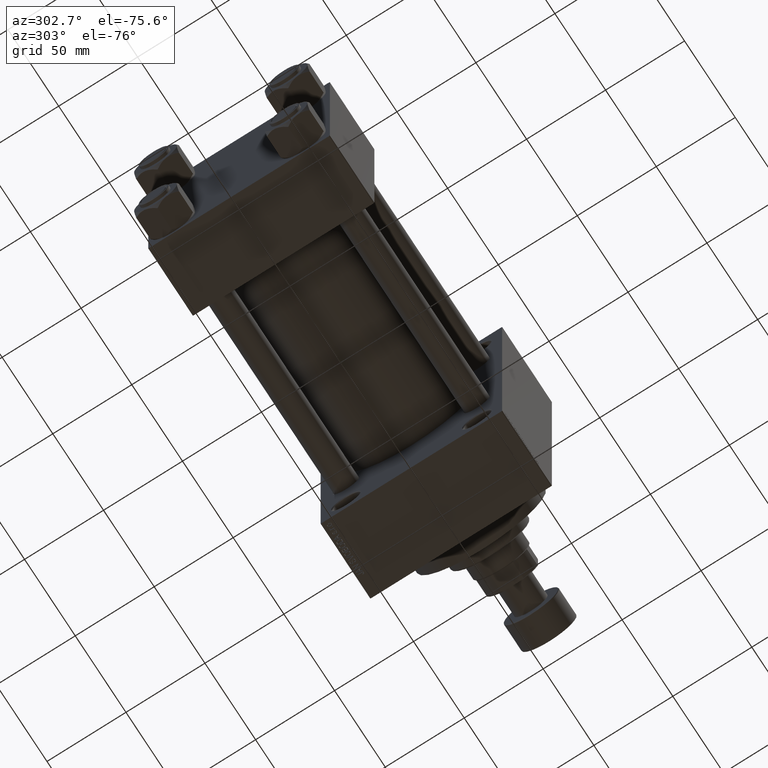
[diagram: clean part render]
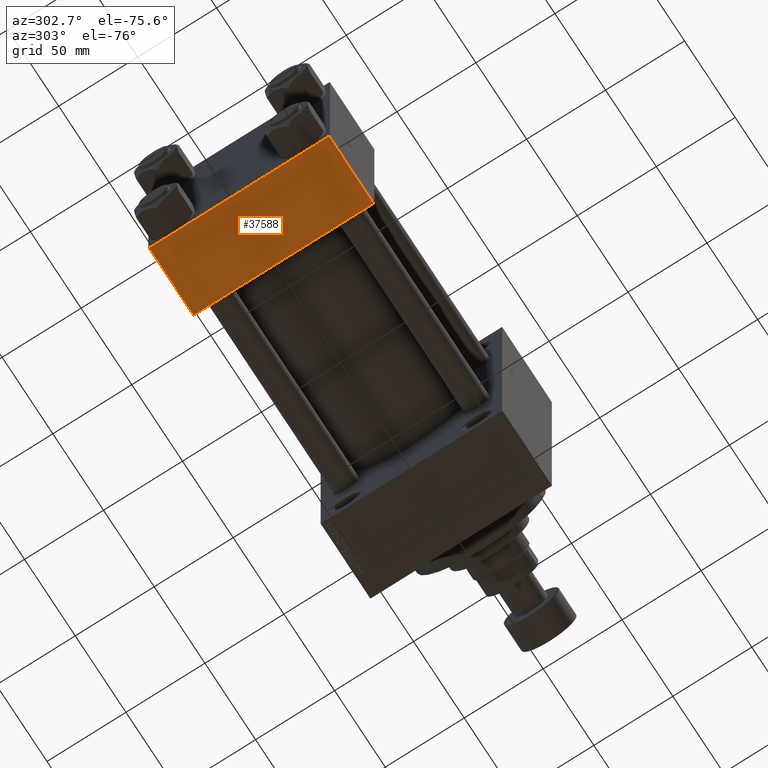
[diagram: same view with one face highlighted and labeled with its STEP entity id]
A machine part, auxiliary view. The second image highlights one B-rep face of the part: STEP entity #37588.
In plain terms, the highlighted planar face has unit normal (0, 0, -1).
Its self-contained STEP definition (entity closure, byte-faithful):
#731 = EDGE_CURVE ( 'NONE', #22801, #36166, #7634, .T. ) ;
#1337 = LINE ( 'NONE', #19595, #47863 ) ;
#3140 = DIRECTION ( 'NONE',  ( 0.000000000000000000, 1.206764157201257291E-16, -1.000000000000000000 ) ) ;
#7634 = LINE ( 'NONE', #33418, #30770 ) ;
#8518 = DIRECTION ( 'NONE',  ( 0.000000000000000000, -1.000000000000000000, -1.206764157201257291E-16 ) ) ;
#8713 = EDGE_CURVE ( 'NONE', #26845, #29045, #20082, .T. ) ;
#8973 = CARTESIAN_POINT ( 'NONE',  ( 44.00000000000000000, 57.50000000000000000, -57.49999999999999289 ) ) ;
#10705 = CARTESIAN_POINT ( 'NONE',  ( 44.00000000000000000, -57.00000000000001421, -57.50000000000000711 ) ) ;
#10837 = ORIENTED_EDGE ( 'NONE', *, *, #22471, .F. ) ;
#11907 = EDGE_LOOP ( 'NONE', ( #10837, #43403, #36131, #14765 ) ) ;
#14484 = CARTESIAN_POINT ( 'NONE',  ( 0.000000000000000000, -57.00000000000001421, -57.50000000000000711 ) ) ;
#14571 = CARTESIAN_POINT ( 'NONE',  ( 44.00000000000000000, 57.50000000000000000, -57.49999999999999289 ) ) ;
#14765 = ORIENTED_EDGE ( 'NONE', *, *, #8713, .T. ) ;
#17978 = FACE_OUTER_BOUND ( 'NONE', #11907, .T. ) ;
#19421 = CARTESIAN_POINT ( 'NONE',  ( 44.00000000000000000, 57.00000000000002842, -57.49999999999999289 ) ) ;
#19595 = CARTESIAN_POINT ( 'NONE',  ( 0.000000000000000000, 57.50000000000000000, -57.49999999999999289 ) ) ;
#20082 = LINE ( 'NONE', #34680, #38360 ) ;
#20909 = DIRECTION ( 'NONE',  ( 0.000000000000000000, 1.000000000000000000, 1.206764157201257291E-16 ) ) ;
#22390 = VECTOR ( 'NONE', #8518, 1000.000000000000000 ) ;
#22471 = EDGE_CURVE ( 'NONE', #22801, #29045, #1337, .T. ) ;
#22480 = DIRECTION ( 'NONE',  ( 1.000000000000000000, 0.000000000000000000, 0.000000000000000000 ) ) ;
#22801 = VERTEX_POINT ( 'NONE', #42088 ) ;
#23012 = DIRECTION ( 'NONE',  ( 0.000000000000000000, -1.000000000000000000, -1.206764157201257291E-16 ) ) ;
#26845 = VERTEX_POINT ( 'NONE', #10705 ) ;
#29045 = VERTEX_POINT ( 'NONE', #14484 ) ;
#30571 = DIRECTION ( 'NONE',  ( -1.000000000000000000, 0.000000000000000000, 0.000000000000000000 ) ) ;
#30770 = VECTOR ( 'NONE', #22480, 1000.000000000000000 ) ;
#31749 = EDGE_CURVE ( 'NONE', #36166, #26845, #41361, .T. ) ;
#33283 = AXIS2_PLACEMENT_3D ( 'NONE', #14571, #3140, #20909 ) ;
#33418 = CARTESIAN_POINT ( 'NONE',  ( 44.00000000000000000, 57.00000000000002842, -57.49999999999999289 ) ) ;
#34680 = CARTESIAN_POINT ( 'NONE',  ( 0.000000000000000000, -57.00000000000001421, -57.50000000000000711 ) ) ;
#35744 = PLANE ( 'NONE',  #33283 ) ;
#36131 = ORIENTED_EDGE ( 'NONE', *, *, #31749, .T. ) ;
#36166 = VERTEX_POINT ( 'NONE', #19421 ) ;
#37588 = ADVANCED_FACE ( 'NONE', ( #17978 ), #35744, .T. ) ;
#38360 = VECTOR ( 'NONE', #30571, 1000.000000000000000 ) ;
#41361 = LINE ( 'NONE', #8973, #22390 ) ;
#42088 = CARTESIAN_POINT ( 'NONE',  ( 0.000000000000000000, 57.00000000000002842, -57.49999999999999289 ) ) ;
#43403 = ORIENTED_EDGE ( 'NONE', *, *, #731, .T. ) ;
#47863 = VECTOR ( 'NONE', #23012, 1000.000000000000000 ) ;